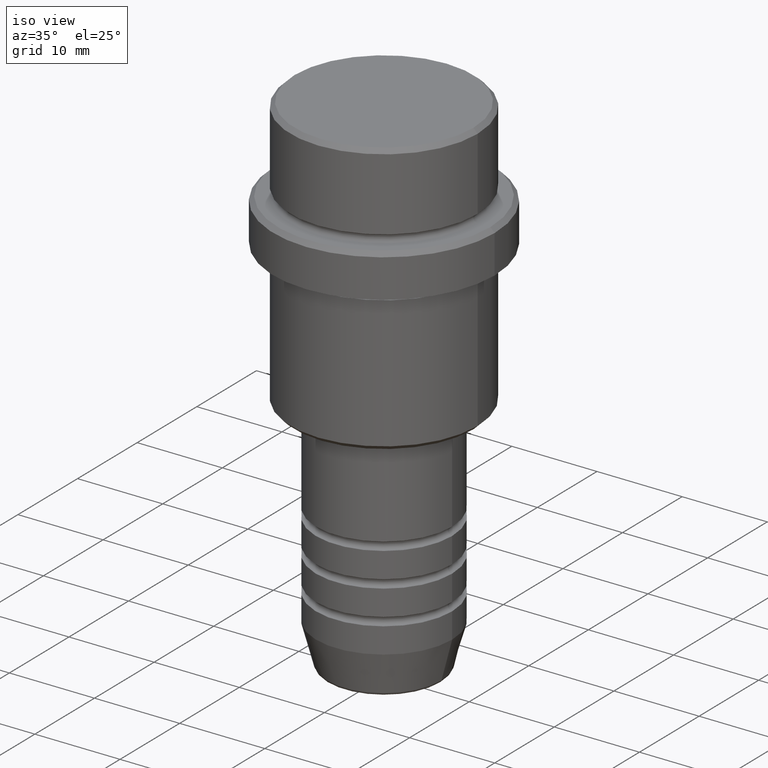
[diagram: clean part render]
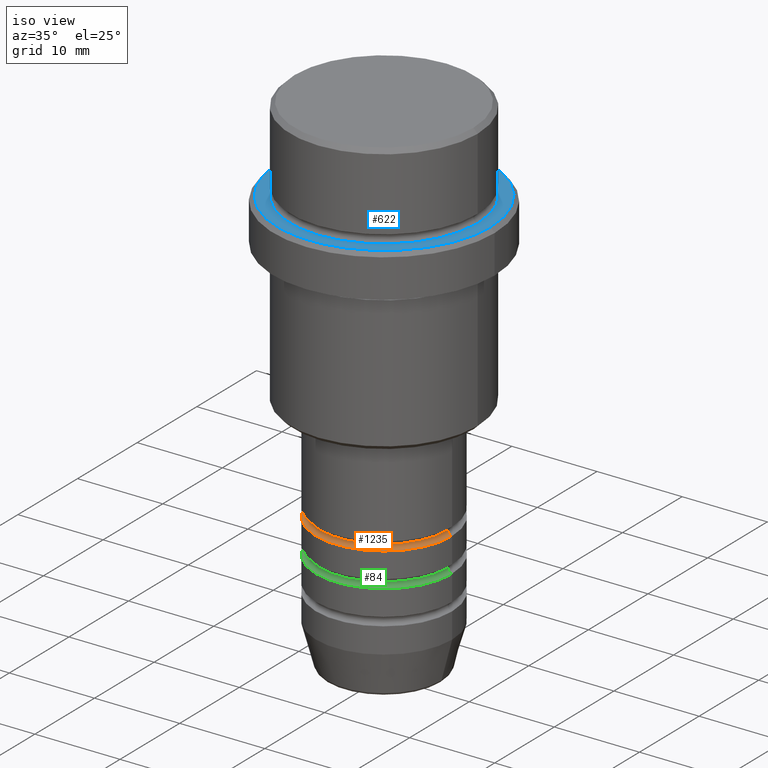
[diagram: same view with three faces highlighted in distinct colors, each labeled with its STEP entity id]
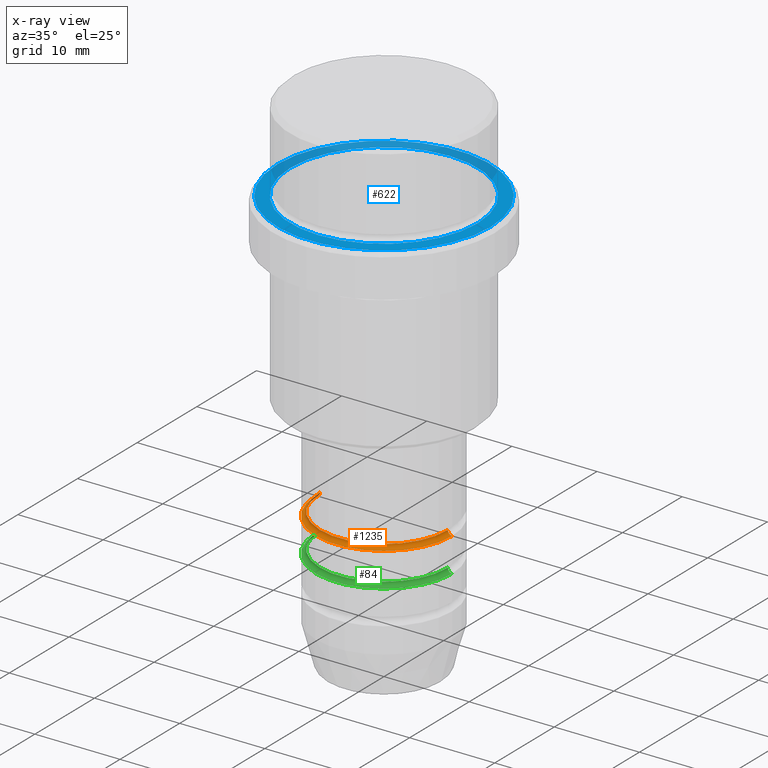
[diagram: x-ray of the same camera — body ghosted, the three highlighted faces saturated]
A machine part, iso view with three faces highlighted in distinct colors.
The next image is the same camera in x-ray (body ghosted, the three faces saturated) — at least one of them is partly hidden behind the body in this view.
Their STEP definitions:

[orange] entity #1235 — the highlighted toroidal blend (fillet) surface has major radius 8 mm and minor (blend) radius 0.5 mm.
#8 = AXIS2_PLACEMENT_3D ( 'NONE', #1125, #151, #602 ) ;
#14 = VERTEX_POINT ( 'NONE', #509 ) ;
#17 = DIRECTION ( 'NONE',  ( -0.000000000000000000, -0.000000000000000000, 1.000000000000000000 ) ) ;
#79 = CARTESIAN_POINT ( 'NONE',  ( -7.499999999999976907, 9.491012693391973982E-16, -43.49999999999989342 ) ) ;
#139 = AXIS2_PLACEMENT_3D ( 'NONE', #796, #17, #1233 ) ;
#151 = DIRECTION ( 'NONE',  ( 1.224646799147353207E-16, 1.000000000000000000, 0.000000000000000000 ) ) ;
#163 = CARTESIAN_POINT ( 'NONE',  ( 0.000000000000000000, 0.000000000000000000, -43.99999999999989342 ) ) ;
#179 = DIRECTION ( 'NONE',  ( 0.000000000000000000, -1.000000000000000000, 0.000000000000000000 ) ) ;
#188 = AXIS2_PLACEMENT_3D ( 'NONE', #163, #735, #1395 ) ;
#292 = VERTEX_POINT ( 'NONE', #1300 ) ;
#301 = FACE_OUTER_BOUND ( 'NONE', #664, .T. ) ;
#335 = AXIS2_PLACEMENT_3D ( 'NONE', #1132, #1386, #506 ) ;
#392 = ORIENTED_EDGE ( 'NONE', *, *, #421, .T. ) ;
#421 = EDGE_CURVE ( 'NONE', #292, #1111, #1199, .T. ) ;
#500 = TOROIDAL_SURFACE ( 'NONE', #139, 7.999999999999977796, 0.5000000000000000000 ) ;
#504 = EDGE_CURVE ( 'NONE', #14, #1111, #1024, .T. ) ;
#506 = DIRECTION ( 'NONE',  ( 1.000000000000000000, 0.000000000000000000, 0.000000000000000000 ) ) ;
#509 = CARTESIAN_POINT ( 'NONE',  ( 7.499999999999976907, 0.000000000000000000, -43.49999999999989342 ) ) ;
#519 = EDGE_CURVE ( 'NONE', #1215, #14, #831, .T. ) ;
#602 = DIRECTION ( 'NONE',  ( -1.000000000000000000, 1.224646799147353454E-16, 0.000000000000000000 ) ) ;
#638 = CIRCLE ( 'NONE', #8, 0.5000000000000004441 ) ;
#640 = ORIENTED_EDGE ( 'NONE', *, *, #519, .F. ) ;
#664 = EDGE_LOOP ( 'NONE', ( #640, #757, #392, #1080 ) ) ;
#735 = DIRECTION ( 'NONE',  ( -0.000000000000000000, -0.000000000000000000, 1.000000000000000000 ) ) ;
#740 = CARTESIAN_POINT ( 'NONE',  ( 7.999999999999977796, 0.000000000000000000, -43.49999999999989342 ) ) ;
#757 = ORIENTED_EDGE ( 'NONE', *, *, #767, .T. ) ;
#767 = EDGE_CURVE ( 'NONE', #1215, #292, #638, .T. ) ;
#796 = CARTESIAN_POINT ( 'NONE',  ( 0.000000000000000000, 0.000000000000000000, -43.49999999999989342 ) ) ;
#824 = CARTESIAN_POINT ( 'NONE',  ( 8.000000000000000000, 0.000000000000000000, -43.99999999999989342 ) ) ;
#831 = CIRCLE ( 'NONE', #335, 7.499999999999976907 ) ;
#849 = DIRECTION ( 'NONE',  ( 0.000000000000000000, 0.000000000000000000, -1.000000000000000000 ) ) ;
#1024 = CIRCLE ( 'NONE', #1382, 0.5000000000000004441 ) ;
#1080 = ORIENTED_EDGE ( 'NONE', *, *, #504, .F. ) ;
#1111 = VERTEX_POINT ( 'NONE', #824 ) ;
#1125 = CARTESIAN_POINT ( 'NONE',  ( -7.999999999999977796, 9.797174393178798047E-16, -43.49999999999989342 ) ) ;
#1132 = CARTESIAN_POINT ( 'NONE',  ( 0.000000000000000000, 0.000000000000000000, -43.49999999999989342 ) ) ;
#1199 = CIRCLE ( 'NONE', #188, 8.000000000000000000 ) ;
#1215 = VERTEX_POINT ( 'NONE', #79 ) ;
#1233 = DIRECTION ( 'NONE',  ( 1.000000000000000000, 0.000000000000000000, 0.000000000000000000 ) ) ;
#1235 = ADVANCED_FACE ( 'NONE', ( #301 ), #500, .F. ) ;
#1300 = CARTESIAN_POINT ( 'NONE',  ( -8.000000000000000000, 9.797174393178827630E-16, -43.99999999999989342 ) ) ;
#1382 = AXIS2_PLACEMENT_3D ( 'NONE', #740, #179, #849 ) ;
#1386 = DIRECTION ( 'NONE',  ( -0.000000000000000000, -0.000000000000000000, 1.000000000000000000 ) ) ;
#1395 = DIRECTION ( 'NONE',  ( 1.000000000000000000, 0.000000000000000000, 0.000000000000000000 ) ) ;

[blue] entity #622 — the highlighted planar face has unit normal (0, -0, 1).
#12 = FACE_OUTER_BOUND ( 'NONE', #1280, .T. ) ;
#85 = DIRECTION ( 'NONE',  ( 1.000000000000000000, 0.000000000000000000, 0.000000000000000000 ) ) ;
#108 = VERTEX_POINT ( 'NONE', #521 ) ;
#129 = ORIENTED_EDGE ( 'NONE', *, *, #511, .T. ) ;
#168 = CIRCLE ( 'NONE', #1099, 12.50000000000000355 ) ;
#170 = CIRCLE ( 'NONE', #377, 10.99999999999996625 ) ;
#193 = DIRECTION ( 'NONE',  ( -0.000000000000000000, -0.000000000000000000, 1.000000000000000000 ) ) ;
#199 = DIRECTION ( 'NONE',  ( 0.000000000000000000, -0.000000000000000000, 1.000000000000000000 ) ) ;
#206 = DIRECTION ( 'NONE',  ( 1.000000000000000000, 0.000000000000000000, 0.000000000000000000 ) ) ;
#221 = VERTEX_POINT ( 'NONE', #629 ) ;
#302 = CARTESIAN_POINT ( 'NONE',  ( -12.50000000000000355, 0.000000000000000000, -10.00000000000000000 ) ) ;
#312 = CARTESIAN_POINT ( 'NONE',  ( 0.000000000000000000, 0.000000000000000000, -10.00000000000000000 ) ) ;
#319 = CARTESIAN_POINT ( 'NONE',  ( 0.000000000000000000, 0.000000000000000000, -10.00000000000000000 ) ) ;
#332 = DIRECTION ( 'NONE',  ( 0.000000000000000000, 0.000000000000000000, -1.000000000000000000 ) ) ;
#349 = VERTEX_POINT ( 'NONE', #766 ) ;
#377 = AXIS2_PLACEMENT_3D ( 'NONE', #852, #1306, #206 ) ;
#503 = AXIS2_PLACEMENT_3D ( 'NONE', #559, #332, #748 ) ;
#511 = EDGE_CURVE ( 'NONE', #349, #1049, #1074, .T. ) ;
#521 = CARTESIAN_POINT ( 'NONE',  ( -10.99999999999996625, 1.347111479062084460E-15, -10.00000000000000000 ) ) ;
#554 = ORIENTED_EDGE ( 'NONE', *, *, #971, .T. ) ;
#559 = CARTESIAN_POINT ( 'NONE',  ( 0.000000000000000000, 0.000000000000000000, -10.00000000000000000 ) ) ;
#622 = ADVANCED_FACE ( 'NONE', ( #12, #750 ), #965, .T. ) ;
#629 = CARTESIAN_POINT ( 'NONE',  ( 10.99999999999996625, 0.000000000000000000, -10.00000000000000000 ) ) ;
#631 = EDGE_CURVE ( 'NONE', #1049, #349, #168, .T. ) ;
#649 = DIRECTION ( 'NONE',  ( 1.000000000000000000, 0.000000000000000000, 0.000000000000000000 ) ) ;
#655 = ORIENTED_EDGE ( 'NONE', *, *, #631, .T. ) ;
#746 = CIRCLE ( 'NONE', #503, 10.99999999999996625 ) ;
#748 = DIRECTION ( 'NONE',  ( 1.000000000000000000, 0.000000000000000000, 0.000000000000000000 ) ) ;
#750 = FACE_BOUND ( 'NONE', #1168, .T. ) ;
#766 = CARTESIAN_POINT ( 'NONE',  ( 12.50000000000000355, 1.561424668912875506E-15, -10.00000000000000000 ) ) ;
#780 = ORIENTED_EDGE ( 'NONE', *, *, #1094, .T. ) ;
#852 = CARTESIAN_POINT ( 'NONE',  ( 0.000000000000000000, 0.000000000000000000, -10.00000000000000000 ) ) ;
#916 = AXIS2_PLACEMENT_3D ( 'NONE', #1184, #199, #649 ) ;
#937 = AXIS2_PLACEMENT_3D ( 'NONE', #312, #193, #1043 ) ;
#965 = PLANE ( 'NONE',  #916 ) ;
#971 = EDGE_CURVE ( 'NONE', #108, #221, #746, .T. ) ;
#1043 = DIRECTION ( 'NONE',  ( 1.000000000000000000, 0.000000000000000000, 0.000000000000000000 ) ) ;
#1049 = VERTEX_POINT ( 'NONE', #302 ) ;
#1066 = DIRECTION ( 'NONE',  ( -0.000000000000000000, -0.000000000000000000, 1.000000000000000000 ) ) ;
#1074 = CIRCLE ( 'NONE', #937, 12.50000000000000355 ) ;
#1094 = EDGE_CURVE ( 'NONE', #221, #108, #170, .T. ) ;
#1099 = AXIS2_PLACEMENT_3D ( 'NONE', #319, #1066, #85 ) ;
#1168 = EDGE_LOOP ( 'NONE', ( #780, #554 ) ) ;
#1184 = CARTESIAN_POINT ( 'NONE',  ( 0.000000000000000000, 10.49999999999996625, -10.00000000000000000 ) ) ;
#1280 = EDGE_LOOP ( 'NONE', ( #655, #129 ) ) ;
#1306 = DIRECTION ( 'NONE',  ( 0.000000000000000000, 0.000000000000000000, -1.000000000000000000 ) ) ;

[green] entity #84 — the highlighted toroidal blend (fillet) surface has major radius 8 mm and minor (blend) radius 0.5 mm.
#5 = ORIENTED_EDGE ( 'NONE', *, *, #487, .T. ) ;
#33 = VERTEX_POINT ( 'NONE', #515 ) ;
#84 = ADVANCED_FACE ( 'NONE', ( #320 ), #210, .F. ) ;
#88 = DIRECTION ( 'NONE',  ( -0.000000000000000000, -0.000000000000000000, 1.000000000000000000 ) ) ;
#105 = CARTESIAN_POINT ( 'NONE',  ( -7.499999999999976907, 9.491012693391973982E-16, -47.49999999999988631 ) ) ;
#183 = CARTESIAN_POINT ( 'NONE',  ( 0.000000000000000000, 0.000000000000000000, -47.99999999999989342 ) ) ;
#210 = TOROIDAL_SURFACE ( 'NONE', #230, 7.999999999999977796, 0.5000000000000000000 ) ;
#219 = EDGE_CURVE ( 'NONE', #341, #33, #894, .T. ) ;
#230 = AXIS2_PLACEMENT_3D ( 'NONE', #857, #957, #426 ) ;
#285 = EDGE_CURVE ( 'NONE', #1263, #734, #306, .T. ) ;
#306 = CIRCLE ( 'NONE', #1340, 7.499999999999976907 ) ;
#313 = DIRECTION ( 'NONE',  ( 0.000000000000000000, -1.000000000000000000, 0.000000000000000000 ) ) ;
#320 = FACE_OUTER_BOUND ( 'NONE', #1103, .T. ) ;
#341 = VERTEX_POINT ( 'NONE', #661 ) ;
#401 = DIRECTION ( 'NONE',  ( -1.000000000000000000, 1.224646799147353454E-16, 0.000000000000000000 ) ) ;
#426 = DIRECTION ( 'NONE',  ( 1.000000000000000000, 0.000000000000000000, 0.000000000000000000 ) ) ;
#462 = ORIENTED_EDGE ( 'NONE', *, *, #219, .T. ) ;
#487 = EDGE_CURVE ( 'NONE', #1263, #341, #827, .T. ) ;
#515 = CARTESIAN_POINT ( 'NONE',  ( 8.000000000000000000, 0.000000000000000000, -47.99999999999989342 ) ) ;
#637 = DIRECTION ( 'NONE',  ( 1.000000000000000000, 0.000000000000000000, 0.000000000000000000 ) ) ;
#661 = CARTESIAN_POINT ( 'NONE',  ( -8.000000000000000000, 9.797174393178825657E-16, -47.99999999999989342 ) ) ;
#680 = CARTESIAN_POINT ( 'NONE',  ( 7.499999999999976907, 0.000000000000000000, -47.49999999999988631 ) ) ;
#734 = VERTEX_POINT ( 'NONE', #680 ) ;
#755 = ORIENTED_EDGE ( 'NONE', *, *, #1172, .F. ) ;
#799 = ORIENTED_EDGE ( 'NONE', *, *, #285, .F. ) ;
#806 = AXIS2_PLACEMENT_3D ( 'NONE', #841, #313, #1305 ) ;
#827 = CIRCLE ( 'NONE', #851, 0.5000000000000004441 ) ;
#841 = CARTESIAN_POINT ( 'NONE',  ( 7.999999999999977796, 0.000000000000000000, -47.49999999999988631 ) ) ;
#851 = AXIS2_PLACEMENT_3D ( 'NONE', #1273, #1035, #401 ) ;
#857 = CARTESIAN_POINT ( 'NONE',  ( 0.000000000000000000, 0.000000000000000000, -47.49999999999988631 ) ) ;
#894 = CIRCLE ( 'NONE', #1318, 8.000000000000000000 ) ;
#912 = DIRECTION ( 'NONE',  ( -0.000000000000000000, -0.000000000000000000, 1.000000000000000000 ) ) ;
#957 = DIRECTION ( 'NONE',  ( -0.000000000000000000, -0.000000000000000000, 1.000000000000000000 ) ) ;
#1018 = DIRECTION ( 'NONE',  ( 1.000000000000000000, 0.000000000000000000, 0.000000000000000000 ) ) ;
#1035 = DIRECTION ( 'NONE',  ( 1.224646799147353207E-16, 1.000000000000000000, 0.000000000000000000 ) ) ;
#1103 = EDGE_LOOP ( 'NONE', ( #799, #5, #462, #755 ) ) ;
#1172 = EDGE_CURVE ( 'NONE', #734, #33, #1275, .T. ) ;
#1263 = VERTEX_POINT ( 'NONE', #105 ) ;
#1273 = CARTESIAN_POINT ( 'NONE',  ( -7.999999999999977796, 9.797174393178798047E-16, -47.49999999999988631 ) ) ;
#1275 = CIRCLE ( 'NONE', #806, 0.5000000000000004441 ) ;
#1305 = DIRECTION ( 'NONE',  ( 0.000000000000000000, 0.000000000000000000, -1.000000000000000000 ) ) ;
#1318 = AXIS2_PLACEMENT_3D ( 'NONE', #183, #912, #1018 ) ;
#1340 = AXIS2_PLACEMENT_3D ( 'NONE', #1408, #88, #637 ) ;
#1408 = CARTESIAN_POINT ( 'NONE',  ( 0.000000000000000000, 0.000000000000000000, -47.49999999999988631 ) ) ;